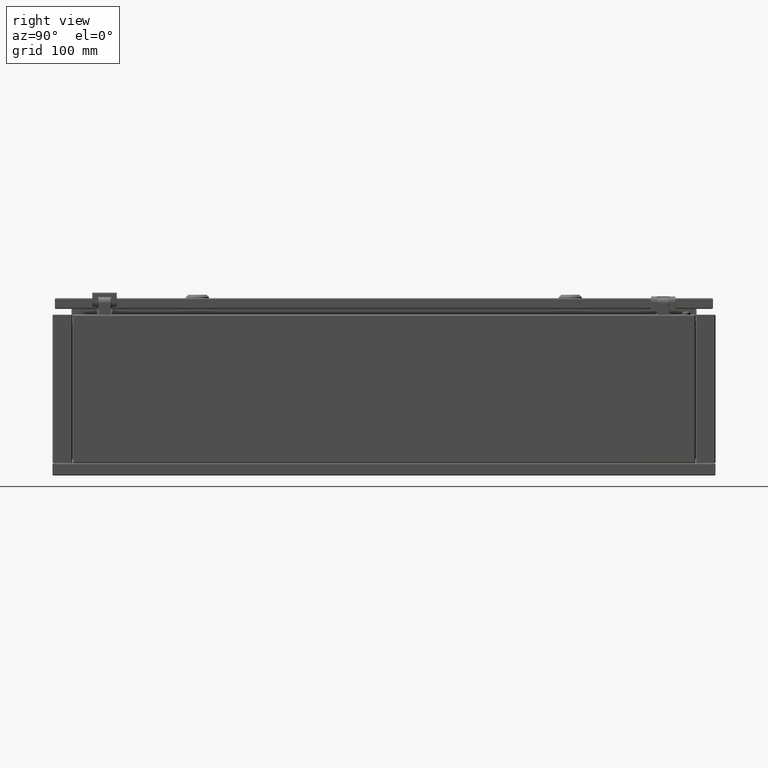
[diagram: clean part render]
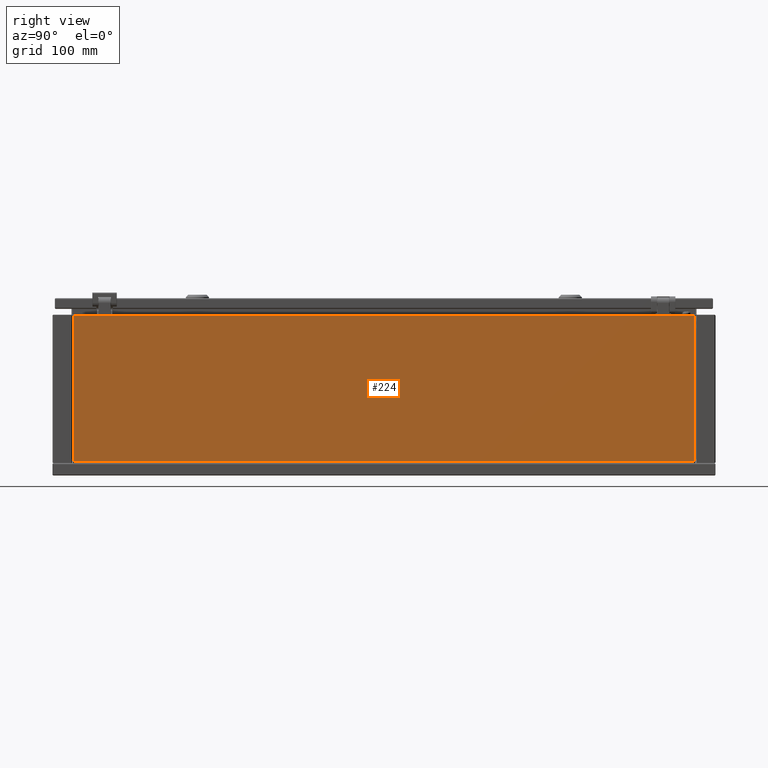
[diagram: same view with one face highlighted and labeled with its STEP entity id]
A machine part, right view. The second image highlights one B-rep face of the part: STEP entity #224.
In plain terms, the highlighted planar face has unit normal (1, -0, -0).
Its self-contained STEP definition (entity closure, byte-faithful):
#224 = ADVANCED_FACE ( 'NONE', ( #46746 ), #49799, .T. ) ;
#1635 = CARTESIAN_POINT ( 'NONE',  ( 150.0000000000000000, 374.2500000000000000, 15.50000000000000000 ) ) ;
#1724 = DIRECTION ( 'NONE',  ( 1.665334536937769800E-016, 1.000000000000000000, -1.318389841742363800E-016 ) ) ;
#3824 = DIRECTION ( 'NONE',  ( -1.665334536937769800E-016, -1.000000000000000000, 1.318389841742363800E-016 ) ) ;
#6902 = CARTESIAN_POINT ( 'NONE',  ( 150.0000000000000000, 374.2500000000000000, 191.5000000000000000 ) ) ;
#18898 = LINE ( 'NONE', #31362, #50970 ) ;
#19778 = EDGE_CURVE ( 'NONE', #51772, #49643, #18898, .T. ) ;
#19992 = EDGE_LOOP ( 'NONE', ( #78100, #41563, #43362, #37457 ) ) ;
#20419 = VECTOR ( 'NONE', #31244, 1000.000000000000000 ) ;
#31244 = DIRECTION ( 'NONE',  ( -3.954062174942385400E-015, -2.243978408070900000E-016, -1.000000000000000000 ) ) ;
#31362 = CARTESIAN_POINT ( 'NONE',  ( 150.0000000000000000, 374.2500000000000000, 15.50000000000000000 ) ) ;
#33151 = VECTOR ( 'NONE', #3824, 1000.000000000000000 ) ;
#33636 = EDGE_CURVE ( 'NONE', #51772, #79613, #59871, .T. ) ;
#34288 = AXIS2_PLACEMENT_3D ( 'NONE', #63198, #42579, #1724 ) ;
#37132 = EDGE_CURVE ( 'NONE', #74761, #49643, #41870, .T. ) ;
#37457 = ORIENTED_EDGE ( 'NONE', *, *, #19778, .T. ) ;
#38449 = DIRECTION ( 'NONE',  ( 1.665334536937769800E-016, 1.000000000000000000, -1.318389841742363800E-016 ) ) ;
#41563 = ORIENTED_EDGE ( 'NONE', *, *, #74556, .T. ) ;
#41870 = LINE ( 'NONE', #79349, #77100 ) ;
#42579 = DIRECTION ( 'NONE',  ( 1.000000000000000000, -1.665334536937775000E-016, -3.965082230804130600E-015 ) ) ;
#43362 = ORIENTED_EDGE ( 'NONE', *, *, #33636, .F. ) ;
#46746 = FACE_OUTER_BOUND ( 'NONE', #19992, .T. ) ;
#49643 = VERTEX_POINT ( 'NONE', #6902 ) ;
#49799 = PLANE ( 'NONE',  #34288 ) ;
#50970 = VECTOR ( 'NONE', #79753, 1000.000000000000000 ) ;
#51772 = VERTEX_POINT ( 'NONE', #1635 ) ;
#59354 = CARTESIAN_POINT ( 'NONE',  ( 150.0000000000000000, 375.7500000000000000, 15.50000000000000000 ) ) ;
#59871 = LINE ( 'NONE', #59354, #33151 ) ;
#61065 = CARTESIAN_POINT ( 'NONE',  ( 150.0000000000000000, -374.2500000000000000, 191.5000000000000000 ) ) ;
#63198 = CARTESIAN_POINT ( 'NONE',  ( 150.0000000000000000, 375.7500000000000000, 15.50000000000000000 ) ) ;
#64712 = CARTESIAN_POINT ( 'NONE',  ( 150.0000000000000000, -374.2500000000000000, 191.5000000000000000 ) ) ;
#66354 = LINE ( 'NONE', #64712, #20419 ) ;
#72212 = CARTESIAN_POINT ( 'NONE',  ( 150.0000000000000000, -374.2500000000000000, 15.50000000000000000 ) ) ;
#74556 = EDGE_CURVE ( 'NONE', #74761, #79613, #66354, .T. ) ;
#74761 = VERTEX_POINT ( 'NONE', #61065 ) ;
#77100 = VECTOR ( 'NONE', #38449, 1000.000000000000000 ) ;
#78100 = ORIENTED_EDGE ( 'NONE', *, *, #37132, .F. ) ;
#79349 = CARTESIAN_POINT ( 'NONE',  ( 150.0000000000000000, 375.7500000000000000, 191.5000000000000000 ) ) ;
#79613 = VERTEX_POINT ( 'NONE', #72212 ) ;
#79753 = DIRECTION ( 'NONE',  ( 3.954062174942385400E-015, 2.243978408070900000E-016, 1.000000000000000000 ) ) ;